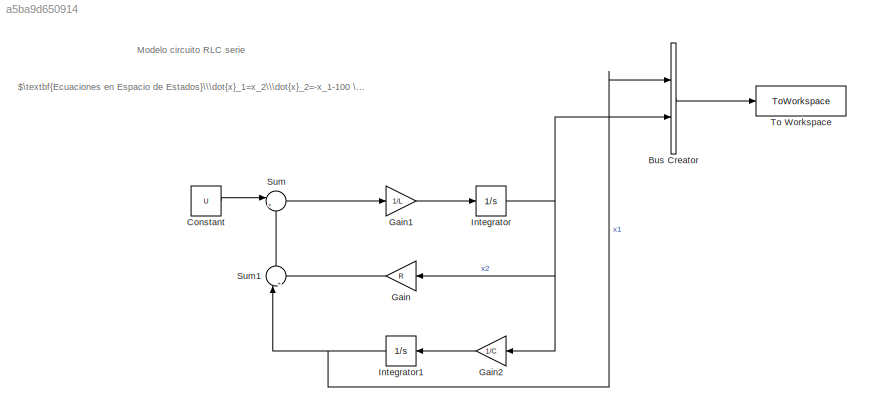
MODEL slx_a5ba9d650914
KIND model
CONFIG AbsTol = auto
CONFIG EnableMultiTasking = off
CONFIG FixedStep = auto
CONFIG MaxStep = auto
CONFIG MinStep = auto
CONFIG RelTol = 1e-3
CONFIG SampleTimeConstraint = Unconstrained
CONFIG SolverName = VariableStepAuto
CONFIG StartTime = 0.0
CONFIG StopTime = 10.0
BLOCK [BusCreator] Bus Creator
  DisplayOption = bar
  InheritFromInputs = on
  Inputs = 2
  Ports = [2, 1]
BLOCK [Constant] Constant
  Value = U
BLOCK [Gain] Gain
  Gain = R
BLOCK [Gain] Gain1
  Gain = 1/L
BLOCK [Gain] Gain2
  Gain = 1/C
BLOCK [Integrator] Integrator
  InitialCondition = y0(2)
  Ports = [1, 1]
BLOCK [Integrator] Integrator1
  InitialCondition = y0(1)
  Ports = [1, 1]
BLOCK [Sum] Sum
  Inputs = |+-
  Ports = [2, 1]
BLOCK [Sum] Sum1
  Inputs = |++
  NameLocation = left
  Ports = [2, 1]
BLOCK [ToWorkspace] To Workspace
  FixptAsFi = on
  MaxDataPoints = inf
  Ports = [1]
  SampleTime = -1
  SaveFormat = Timeseries
  VariableName = x
ANNOTATION (root): $\textbf{Ecuaciones en Espacio de Estados}\\\dot{x}_1=x_2\\\dot{x}_2=-x_1-100 \cdot x_2 +1$
ANNOTATION (root): Modelo circuito RLC serie
LINE Bus Creator:1 -> To Workspace:1
LINE Constant:1 -> Sum:1
LINE Gain1:1 -> Integrator:1
LINE Gain2:1 -> Integrator1:1
LINE Gain:1 -> Sum1:2
NET Integrator1:1 -> Bus Creator:1, Sum1:1
NET Integrator:1 -> Bus Creator:2, Gain2:1, Gain:1
LINE Sum1:1 -> Sum:2
LINE Sum:1 -> Gain1:1
note: NET lines group one-source signal fan-out (src -> all destinations, sorted); 1:1 wires keep LINE
